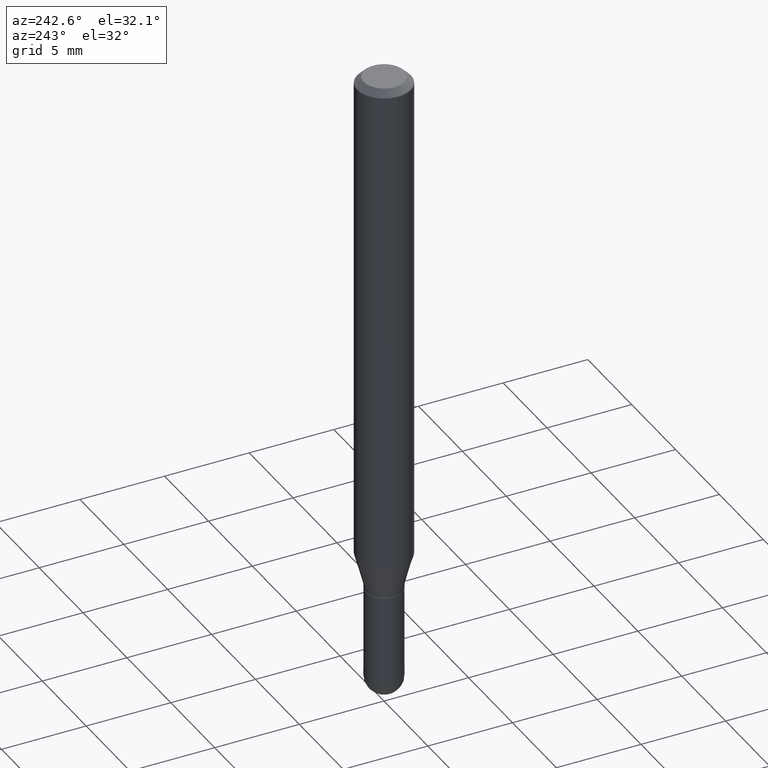
[diagram: clean part render]
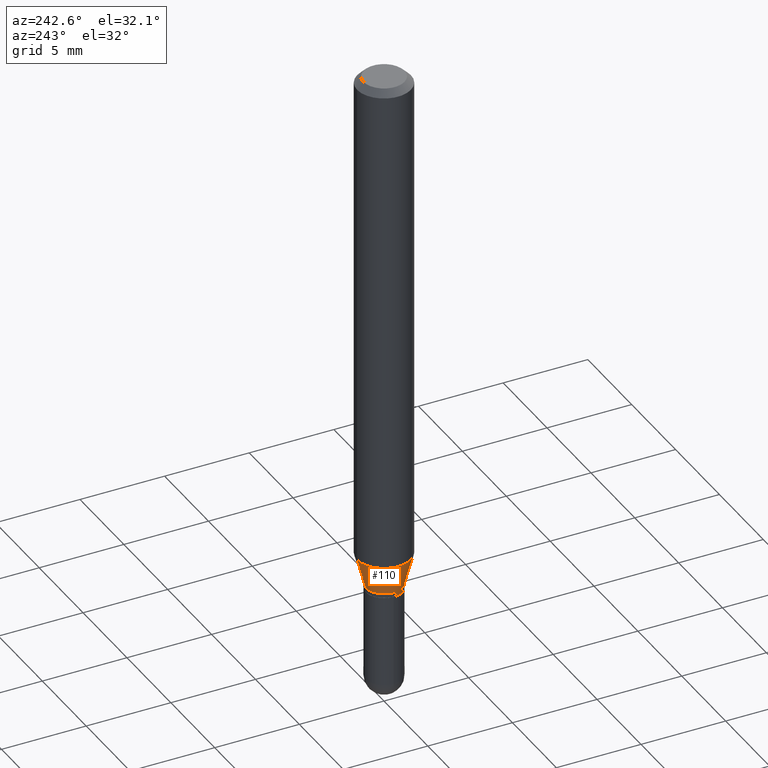
[diagram: same view with one face highlighted and labeled with its STEP entity id]
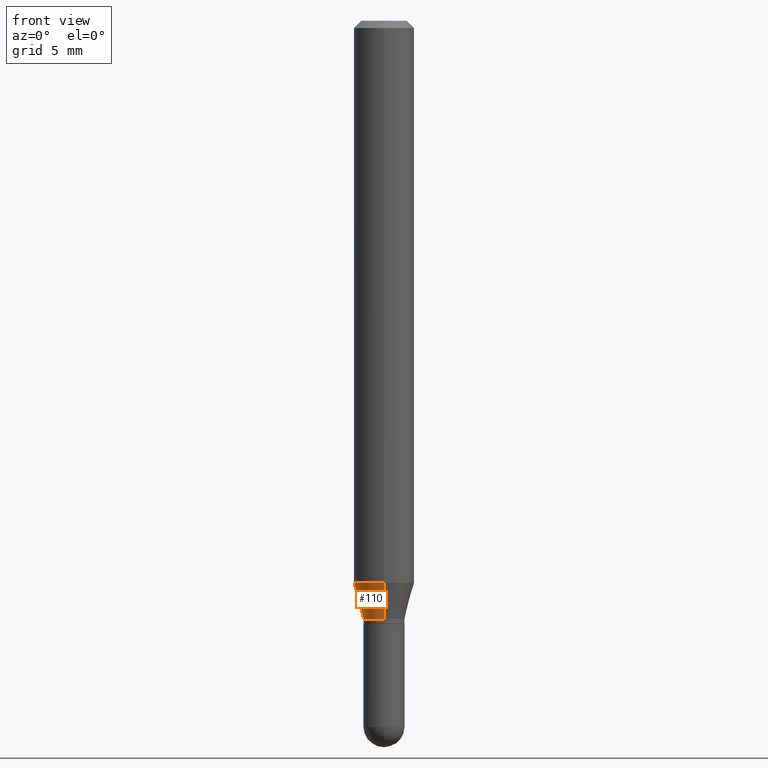
[diagram: same view with one face highlighted and labeled with its STEP entity id]
A machine part, auxiliary view. The second image highlights one B-rep face of the part: STEP entity #110.
A second angle (front view) of the same face is appended — the face is thin or edge-on in the first view.
In plain terms, the highlighted conical surface has half-angle 15 deg.
Its self-contained STEP definition (entity closure, byte-faithful):
#12 = FACE_OUTER_BOUND ( 'NONE', #242, .T. ) ;
#18 = CIRCLE ( 'NONE', #326, 0.04249999999999991979 ) ;
#41 = ORIENTED_EDGE ( 'NONE', *, *, #195, .T. ) ;
#58 = VERTEX_POINT ( 'NONE', #209 ) ;
#80 = DIRECTION ( 'NONE',  ( -6.982962677686265922E-15, -1.000000000000000000, 4.370956789862821150E-15 ) ) ;
#97 = CIRCLE ( 'NONE', #276, 0.06250000000000000000 ) ;
#110 = ADVANCED_FACE ( 'NONE', ( #12 ), #447, .T. ) ;
#158 = VERTEX_POINT ( 'NONE', #294 ) ;
#180 = VECTOR ( 'NONE', #499, 39.37007874015748143 ) ;
#187 = CARTESIAN_POINT ( 'NONE',  ( -2.967759138016355400E-16, -0.04250000000000423578, -1.234999999999999876 ) ) ;
#191 = CARTESIAN_POINT ( 'NONE',  ( 3.020222329858367571E-29, -4.311881566338161202E-15, -1.235000000000000098 ) ) ;
#193 = LINE ( 'NONE', #345, #180 ) ;
#195 = EDGE_CURVE ( 'NONE', #158, #58, #18, .T. ) ;
#209 = CARTESIAN_POINT ( 'NONE',  ( -2.967759138016355400E-16, -0.04250000000000423578, -1.234999999999999876 ) ) ;
#210 = AXIS2_PLACEMENT_3D ( 'NONE', #252, #403, #362 ) ;
#218 = DIRECTION ( 'NONE',  ( -1.807323732225329350E-15, -0.2588190451025180194, 0.9659258262890689783 ) ) ;
#227 = CARTESIAN_POINT ( 'NONE',  ( 4.440892098500911138E-16, 0.06249999999999597544, -1.160358983848622794 ) ) ;
#239 = CARTESIAN_POINT ( 'NONE',  ( 2.837685922001112883E-29, -4.051279767442715559E-15, -1.160358983848622572 ) ) ;
#242 = EDGE_LOOP ( 'NONE', ( #491, #41, #394, #261 ) ) ;
#243 = VERTEX_POINT ( 'NONE', #417 ) ;
#252 = CARTESIAN_POINT ( 'NONE',  ( 3.020222329858367571E-29, -4.311881566338161202E-15, -1.235000000000000098 ) ) ;
#261 = ORIENTED_EDGE ( 'NONE', *, *, #410, .F. ) ;
#263 = DIRECTION ( 'NONE',  ( -6.982962677686266711E-15, -1.000000000000000000, 6.427877632151220009E-15 ) ) ;
#266 = LINE ( 'NONE', #187, #382 ) ;
#276 = AXIS2_PLACEMENT_3D ( 'NONE', #239, #500, #80 ) ;
#277 = EDGE_CURVE ( 'NONE', #58, #243, #266, .T. ) ;
#294 = CARTESIAN_POINT ( 'NONE',  ( 3.730349362740815744E-16, 0.04249999999999561073, -1.235000000000000320 ) ) ;
#298 = VERTEX_POINT ( 'NONE', #227 ) ;
#326 = AXIS2_PLACEMENT_3D ( 'NONE', #191, #422, #263 ) ;
#345 = CARTESIAN_POINT ( 'NONE',  ( 3.019806626980721830E-16, 0.04249999999999561073, -1.235000000000000320 ) ) ;
#362 = DIRECTION ( 'NONE',  ( -6.982962677686266711E-15, -1.000000000000000000, 6.427877632151220009E-15 ) ) ;
#382 = VECTOR ( 'NONE', #218, 39.37007874015749564 ) ;
#394 = ORIENTED_EDGE ( 'NONE', *, *, #277, .T. ) ;
#403 = DIRECTION ( 'NONE',  ( -2.445524153731471341E-29, 3.491402078006607573E-15, 1.000000000000000000 ) ) ;
#410 = EDGE_CURVE ( 'NONE', #298, #243, #97, .T. ) ;
#417 = CARTESIAN_POINT ( 'NONE',  ( -4.364351673553629253E-16, -0.06250000000000401068, -1.160358983848622128 ) ) ;
#422 = DIRECTION ( 'NONE',  ( -2.445524153731471341E-29, 3.491402078006607573E-15, 1.000000000000000000 ) ) ;
#447 = CONICAL_SURFACE ( 'NONE', #210, 0.04249999999999991979, 0.2617993877991501850 ) ;
#463 = EDGE_CURVE ( 'NONE', #158, #298, #193, .T. ) ;
#491 = ORIENTED_EDGE ( 'NONE', *, *, #463, .F. ) ;
#499 = DIRECTION ( 'NONE',  ( 1.839019923739599526E-15, 0.2588190451025248473, 0.9659258262890670910 ) ) ;
#500 = DIRECTION ( 'NONE',  ( -2.445524153731471341E-29, 3.491402078006607573E-15, 1.000000000000000000 ) ) ;